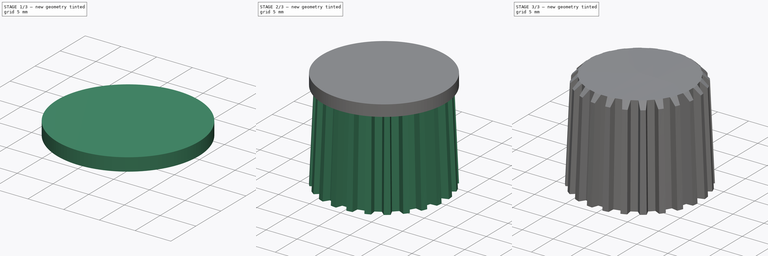
[diagram: build sequence overview — one tinted view per stage of 3, left to right]
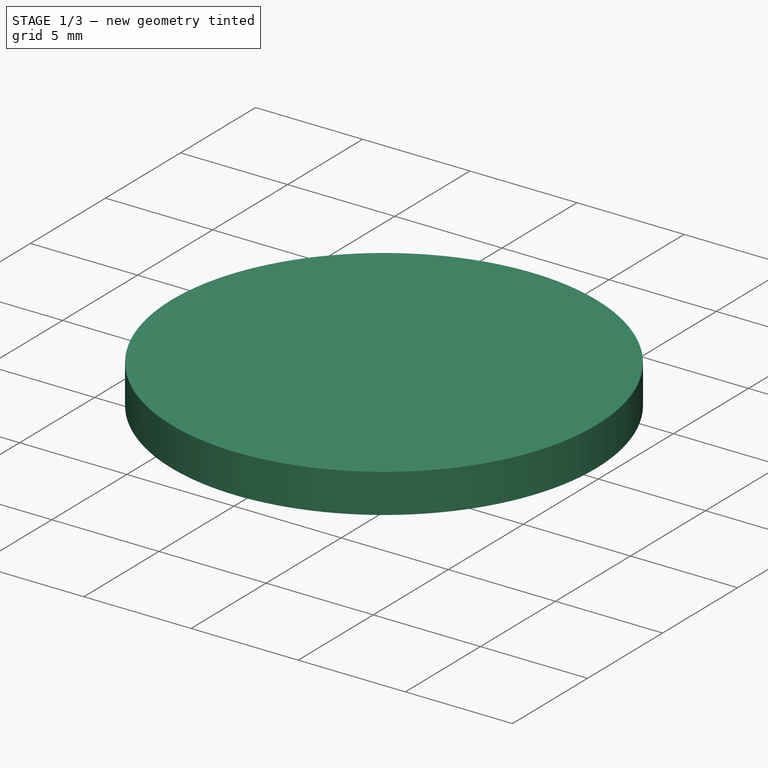
[diagram: stage 1 of 3 — iso view after this stage's code; geometry added in this stage tinted green]
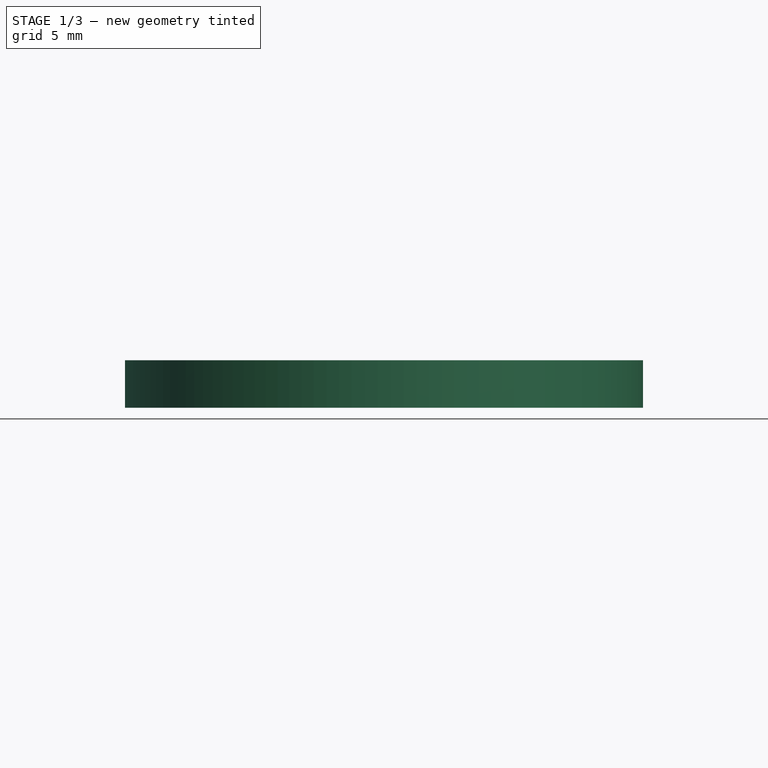
[diagram: stage 1 of 3 — front view after this stage's code; geometry added in this stage tinted green]
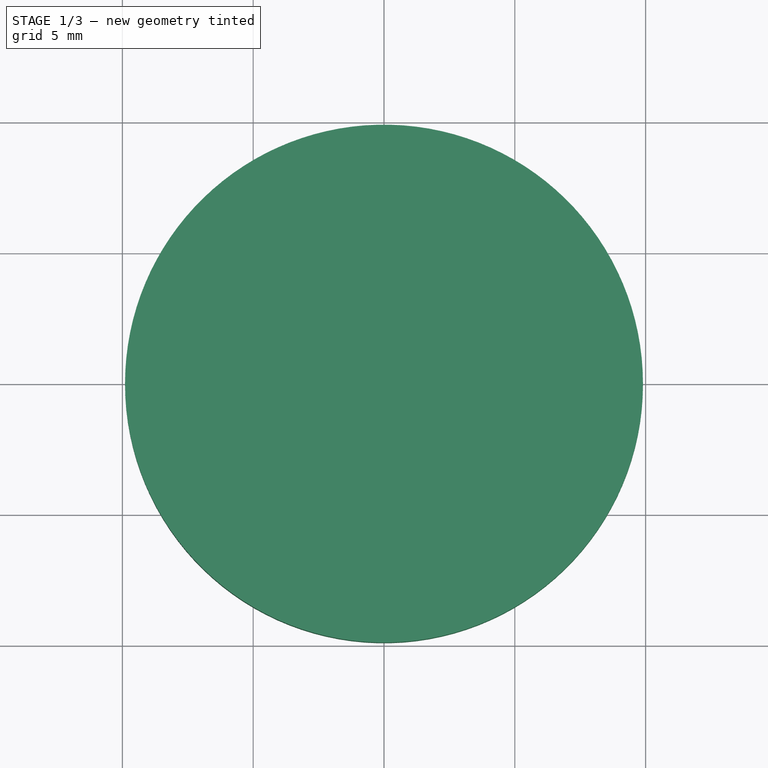
[diagram: stage 1 of 3 — top view after this stage's code; geometry added in this stage tinted green]
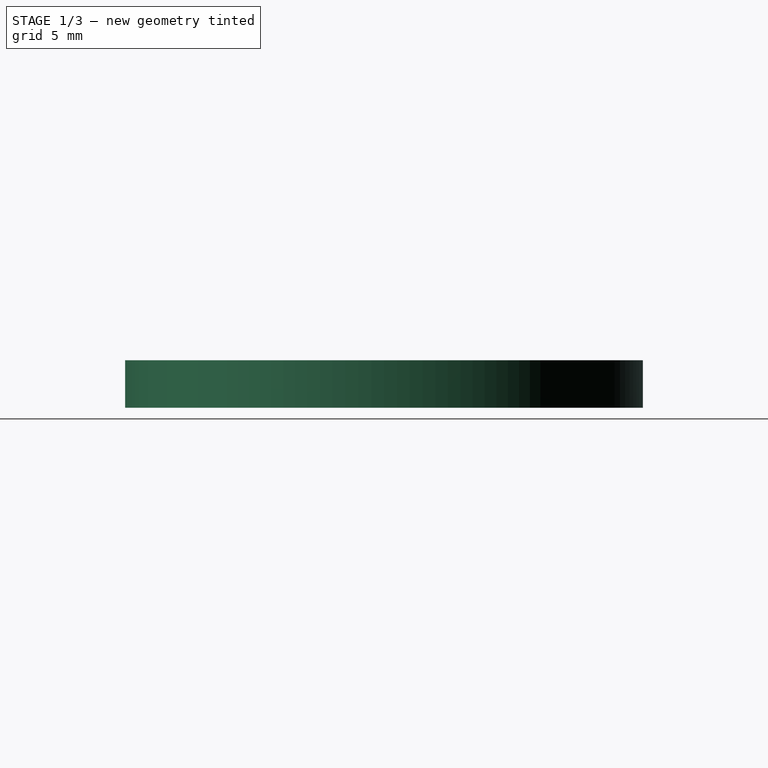
[diagram: stage 1 of 3 — right view after this stage's code; geometry added in this stage tinted green]
FCSTD DOCUMENT  (FreeCAD 0.16R6712 (Git))
Label: RotaryEncoderKnob1
License: All rights reserved
LicenseURL: http://en.wikipedia.org/wiki/All_rights_reserved
objects: Sketcher::SketchObject×3, Part::Cut×2, App::FeaturePython×2, Part::Cone×1, Part::Sweep×1, Part::FeaturePython×1, Part::Revolution×1, Spreadsheet::Sheet×1, PartDesign::Pocket×1
note: 11 computed .brp shape members not serialized (recipe doc carries the construction recipe); baked Part::Feature solids carry a one-line shape summary decoded from their .brp

FEATURE [Part::Cone] Cone
  Angle = 360
  Height = 16.1
  Radius1 = 9.9
  Radius2 = 9.2
FEATURE [Sketcher::SketchObject] Sketch003
  Placement = pos=(0,0,0) rot=(1,0,0;1.5708rad)
  expr: Constraints[4] = Spreadsheet.SphericRad
  expr: Constraints[3] = Cone.Height
  sketch-geometry (4):
    g0: ArcOfCircle CenterX=0 CenterY=-155.396 CenterZ=0 NormalX=0 NormalY=0 NormalZ=1 Radius=171.496 StartAngle=1.5225 EndAngle=1.5708
    g1: LineSegment StartX=8.28 StartY=15.9 StartZ=0 EndX=9.89802 EndY=14.282 EndZ=0
    g2: LineSegment StartX=9.89802 StartY=14.282 StartZ=0 EndX=9.89802 EndY=16.1 EndZ=0
    g3: LineSegment StartX=0 StartY=16.1 StartZ=0 EndX=9.89802 EndY=16.1 EndZ=0
  constraints (13):
    c: PointOnObject(g0,g-2)
    c: PointOnObject(g0,g-2)
    c: DistanceY(g0,g0) = 0.2
    c: DistanceY(g-1,g0) = 16.1
    c: DistanceX(g0,g0) = 8.28
    c: Coincident(g1,g0)
    c: Coincident(g2,g1)
    c: Vertical(g2)
    c: Coincident(g3,g0)
    c: Coincident(g3,g2)
    c: Horizontal(g3)
    c: DistanceX(g-1,g1) = 9.89802
    c: Angle(g2,g1) = 0.785398
FEATURE [Part::Revolution] Revolve
  Angle = 360
  Axis = (0,0,1)
  Base = (0,0,0)
  Solid = true
  Source = -> Sketch003
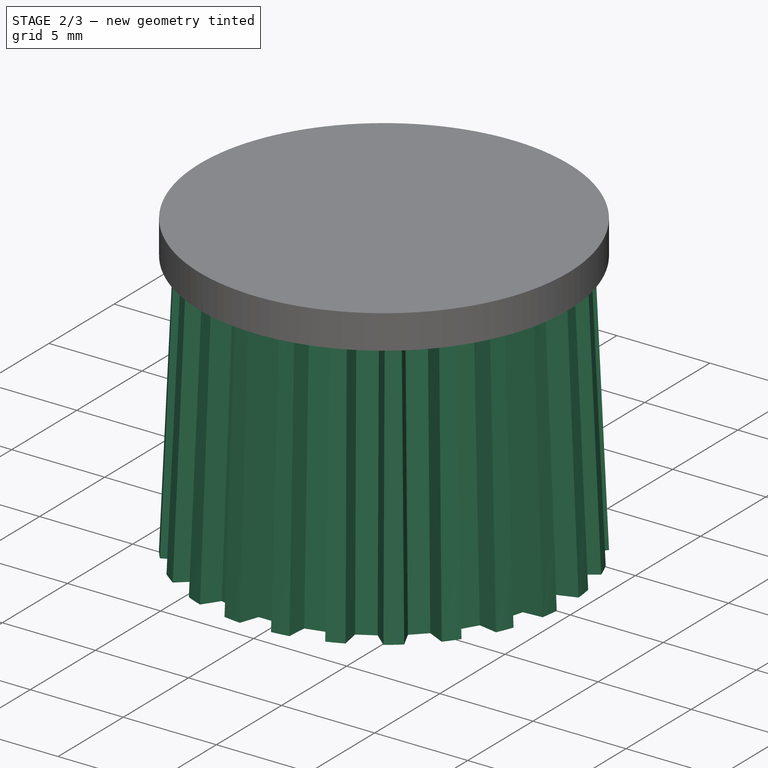
[diagram: stage 2 of 3 — iso view after this stage's code; geometry added in this stage tinted green]
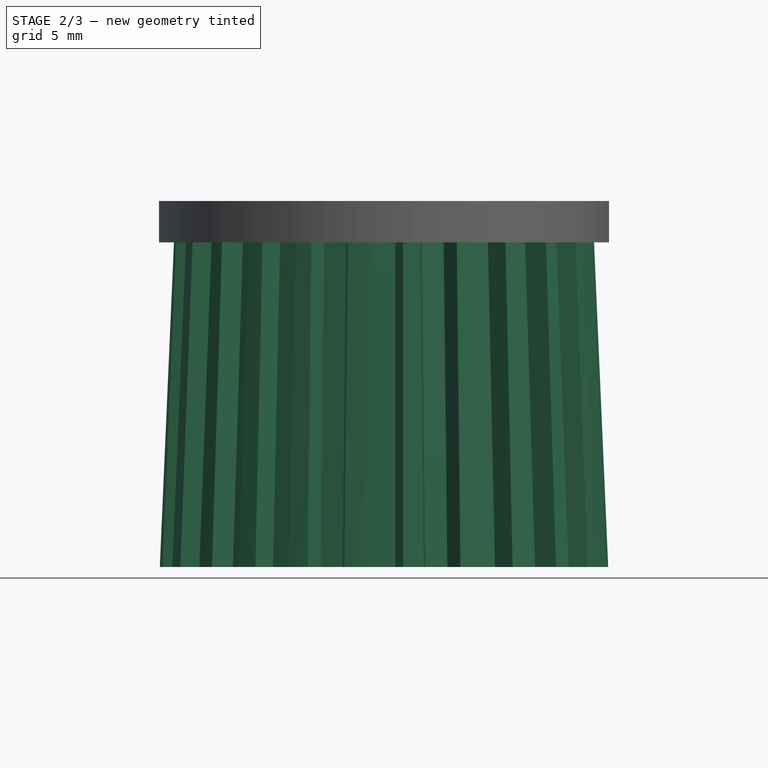
[diagram: stage 2 of 3 — front view after this stage's code; geometry added in this stage tinted green]
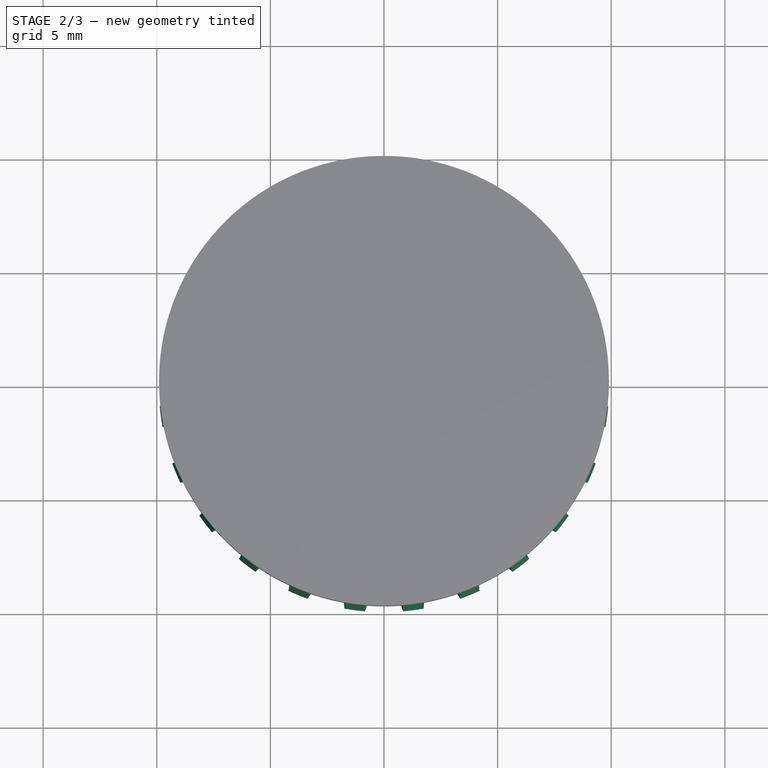
[diagram: stage 2 of 3 — top view after this stage's code; geometry added in this stage tinted green]
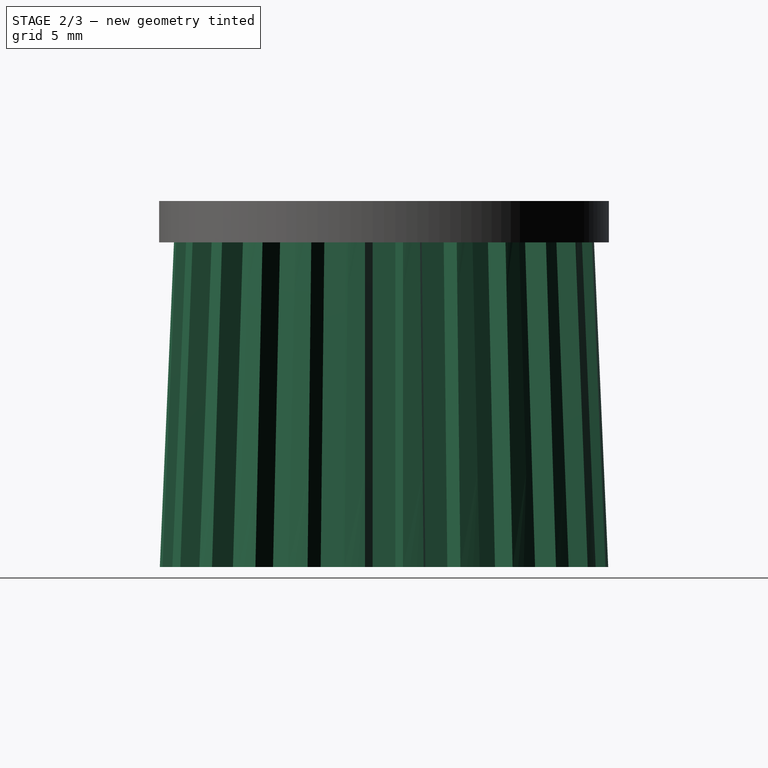
[diagram: stage 2 of 3 — right view after this stage's code; geometry added in this stage tinted green]
FEATURE [Sketcher::SketchObject] Sketch001
  expr: Constraints[9] = Cone.Radius1
  sketch-geometry (4):
    g0: LineSegment StartX=9.9 StartY=-0.85 StartZ=0 EndX=8.9 EndY=-0.5 EndZ=0
    g1: LineSegment StartX=8.9 StartY=-0.5 StartZ=0 EndX=8.9 EndY=0.5 EndZ=0
    g2: LineSegment StartX=8.9 StartY=0.5 StartZ=0 EndX=9.9 EndY=0.85 EndZ=0
    g3: LineSegment StartX=9.9 StartY=0.85 StartZ=0 EndX=9.9 EndY=-0.85 EndZ=0
  constraints (10):
    c: DistanceY(g1,g1) = 1
    c: DistanceY(g3,g3) = 1.7
    c: Coincident(g3,g0)
    c: Coincident(g0,g1)
    c: Coincident(g2,g1)
    c: Coincident(g3,g2)
    c: Symmetric(g0,g1,g-1)
    c: Symmetric(g0,g2,g-1)
    c: DistanceX(g0,g0) = 1
    c: DistanceX(g-1,g2) = 9.9
FEATURE [Part::Sweep] Sweep001
  Frenet = false
  Sections = -> [Sketch001]
  Solid = true
  Spine = -> Cone [Edge2]
  Transition = 1
FEATURE [Part::FeaturePython] Array  # Draft array (typed FeaturePython)
  Angle = 360
  ArrayType = 1
  Axis = (0,0,1)
  Base = -> Sweep001
  Center = (0,0,0)
  Fuse = true
  IntervalAxis = (0,0,0)
  IntervalX = (1,0,0)
  IntervalY = (0,1,0)
  IntervalZ = (0,0,0)
  NumberPolar = 24
  NumberX = 2
  NumberY = 2
  NumberZ = 1
FEATURE [Part::Cut] Cut
  Base = -> Cone
  Tool = -> Array
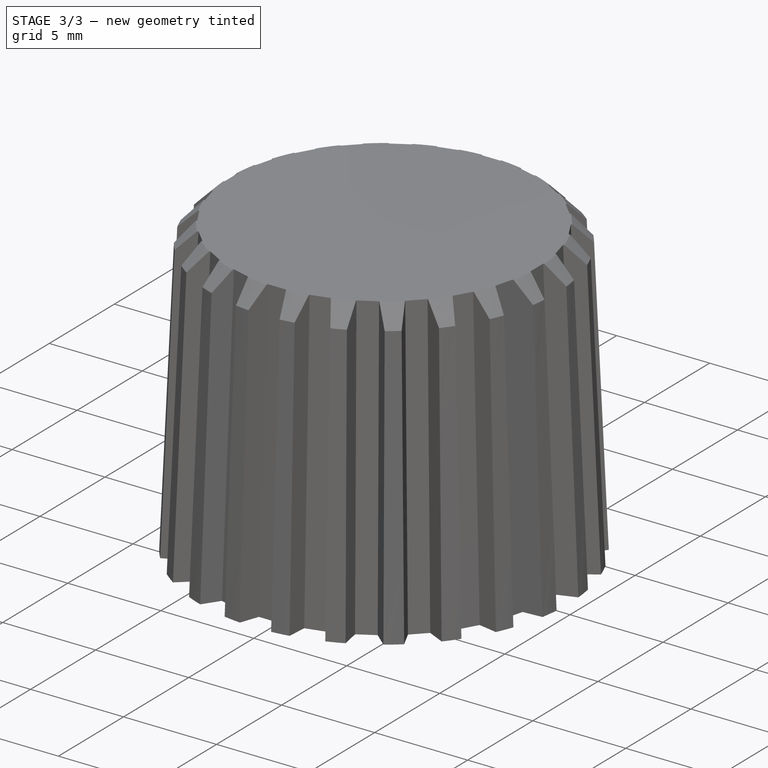
[diagram: stage 3 of 3 — iso view after this stage's code; geometry added in this stage tinted green]
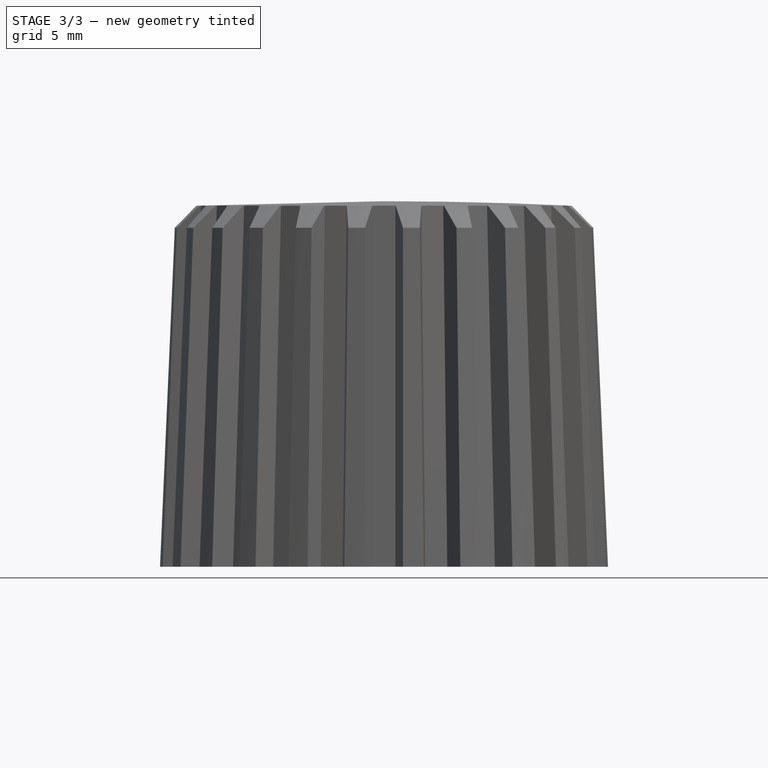
[diagram: stage 3 of 3 — front view after this stage's code; geometry added in this stage tinted green]
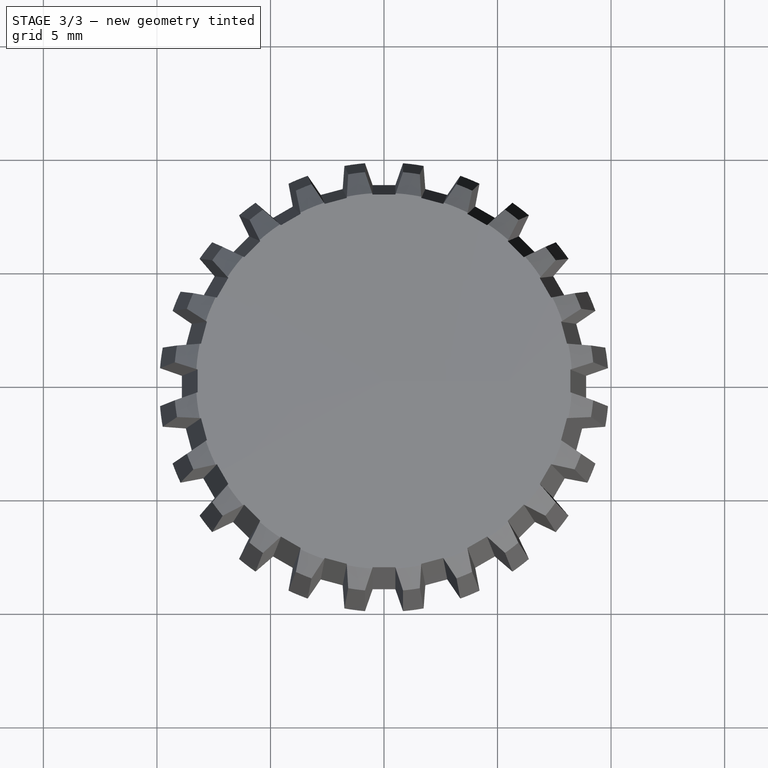
[diagram: stage 3 of 3 — top view after this stage's code; geometry added in this stage tinted green]
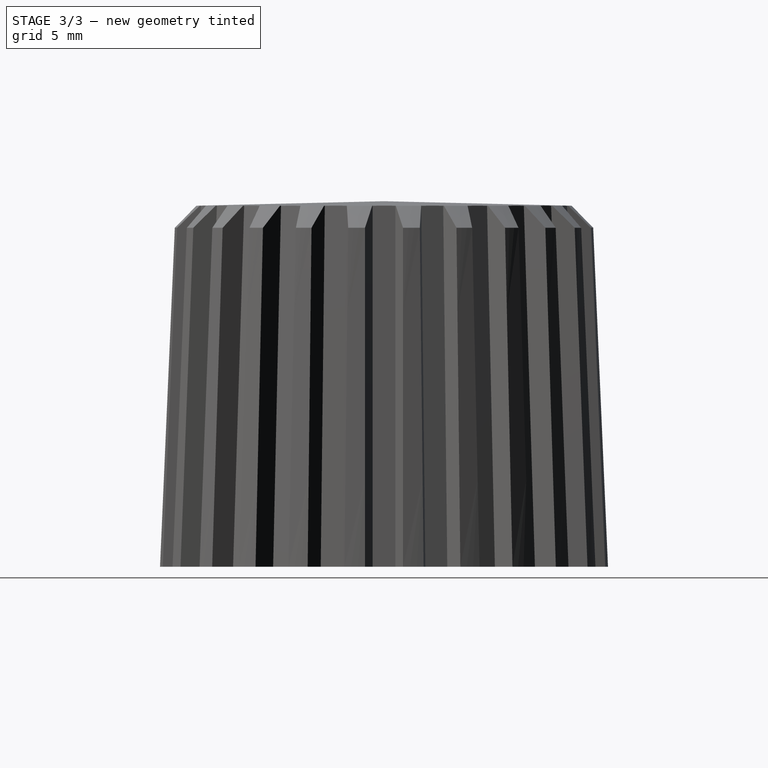
[diagram: stage 3 of 3 — right view after this stage's code; geometry added in this stage tinted green]
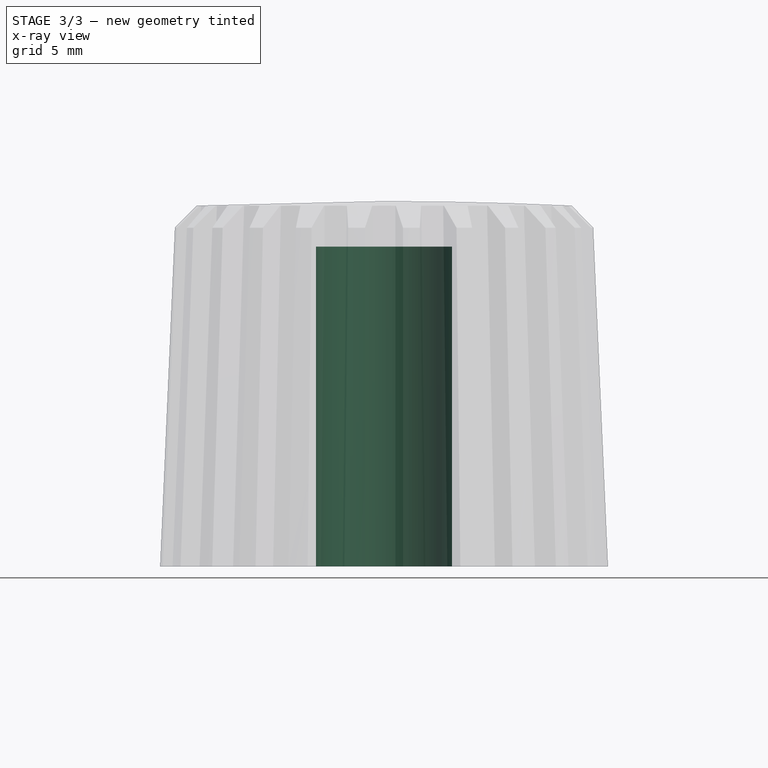
[diagram: stage 3 of 3 — x-ray composite at the front view; earlier geometry ghosted, this stage's added geometry solid]
FEATURE [Spreadsheet::Sheet] Spreadsheet
  cells = A2=ShereCutoutRadius; B2(SphericRad)==Cone.Radius2 * 0.9; A3=HoleRadius; B3(HoleRadius)=3
FEATURE [Part::Cut] Cut001
  Base = -> Cut
  Tool = -> Revolve
FEATURE [Sketcher::SketchObject] Sketch004
  Placement = pos=(0,0,0) rot=(1,0,0;3.14159rad)
  Support = -> Cut001 [Face2]
  expr: Constraints[1] = Spreadsheet.HoleRadius
  sketch-geometry (1):
    g0: Circle CenterX=0 CenterY=0 CenterZ=0 NormalX=0 NormalY=0 NormalZ=1 Radius=3
  constraints (2):
    c: Coincident(g0,g-1)
    c: Radius(g0) = 3
FEATURE [PartDesign::Pocket] Pocket  label="Knob1"
  Length = 14.1
  Sketch = -> Sketch004
  Type = 0
FEATURE [App::FeaturePython] Dimension  # Draft dimension (typed FeaturePython)
  Dimline = (13.3754,-10.4982,0)
  Direction = (0,0,0)
  Distance = 19.8
  End = (-1.29221,-9.8153,0)
  Normal = (0,0,1)
  Start = (1.29221,9.8153,0)
FEATURE [App::FeaturePython] Dimension001  # Draft dimension (typed FeaturePython)
  Dimline = (0,-16.2373,15.8314)
  Direction = (0,0,0)
  Distance = 15.9
  End = (0,0,15.9)
  Normal = (1,0,0)
  Start = (0,0,0)
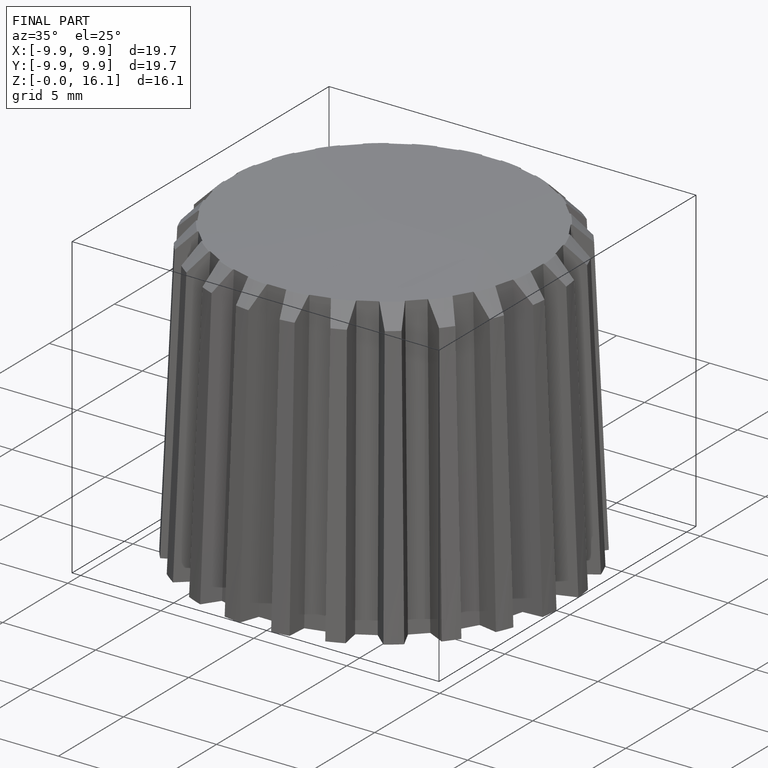
[diagram: finished part — iso view with bounding-box wireframe]
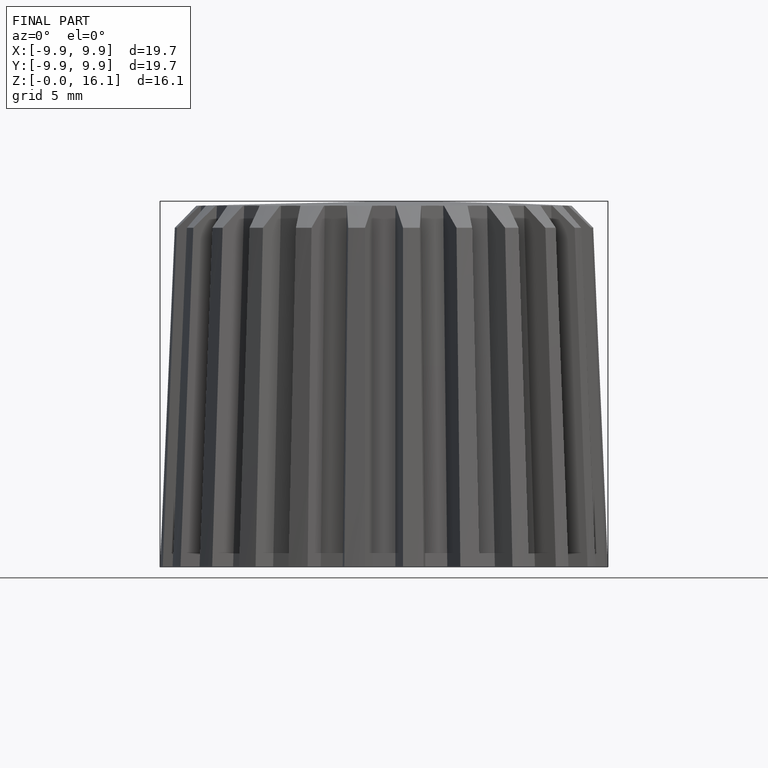
[diagram: finished part — front view with bounding-box wireframe]
